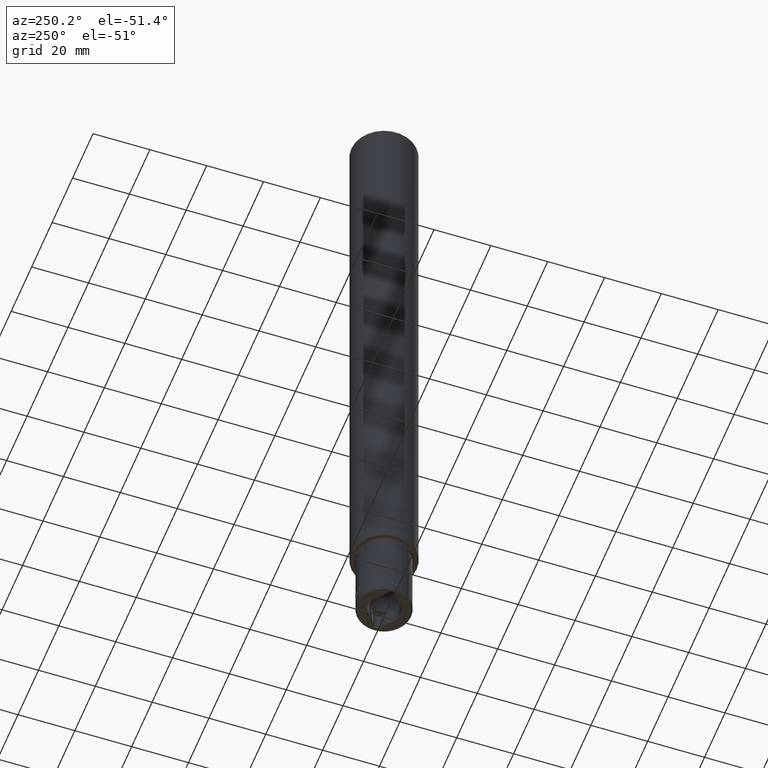
[diagram: clean part render]
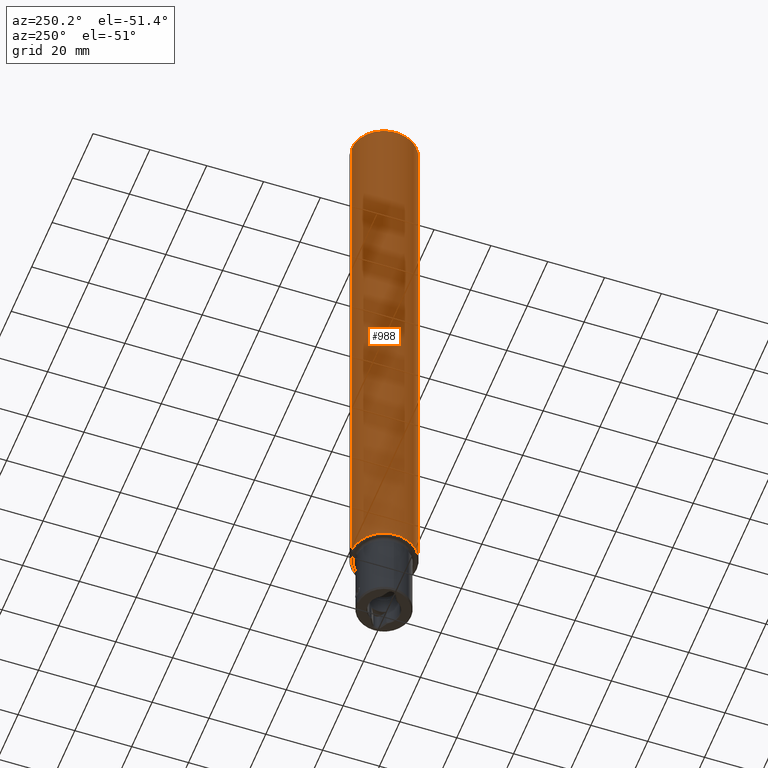
[diagram: same view with one face highlighted and labeled with its STEP entity id]
A machine part, auxiliary view. The second image highlights one B-rep face of the part: STEP entity #988.
In plain terms, the highlighted cylindrical surface (edge-blend (fillet) strip) has radius 11.5 mm, axis along (-0, 0, -1).
Its self-contained STEP definition (entity closure, byte-faithful):
#428=EDGE_CURVE('NONE',#794,#892,#1138,.T.);
#524=VERTEX_POINT('NONE',#1245);
#584=VERTEX_POINT('NONE',#1312);
#664=EDGE_CURVE('NONE',#524,#794,#1395,.F.);
#794=VERTEX_POINT('NONE',#1543);
#810=EDGE_CURVE('NONE',#584,#892,#1561,.F.);
#892=VERTEX_POINT('NONE',#1652);
#928=EDGE_CURVE('NONE',#524,#584,#1692,.T.);
#988=ADVANCED_FACE('NONE',(#1758),#1759,.T.);
#1138=LINE('',#1923,#1924);
#1245=CARTESIAN_POINT('',(2.81664112591521E-015,-11.5000000000001,240.0));
#1312=CARTESIAN_POINT('',(2.81664112591519E-015,-11.5,26.5));
#1395=CIRCLE('',#2367,11.5);
#1543=CARTESIAN_POINT('',(-1.40834381901945E-015,11.5,240.0));
#1561=CIRCLE('',#2759,11.5);
#1652=CARTESIAN_POINT('',(-1.40834381901946E-015,11.5,26.5));
#1692=LINE('',#2995,#2996);
#1758=FACE_OUTER_BOUND('',#3175,.T.);
#1759=CYLINDRICAL_SURFACE('',#3176,11.5);
#1923=CARTESIAN_POINT('',(-1.40834381901946E-015,11.5,2.64829834046847E-015));
#1924=VECTOR('',#3356,1000.0);
#2367=AXIS2_PLACEMENT_3D('',#3618,#3619,#3620);
#2759=AXIS2_PLACEMENT_3D('',#3860,#3861,#3862);
#2995=CARTESIAN_POINT('',(2.81664112591519E-015,-11.5,-2.64829834046847E-015));
#2996=VECTOR('',#4015,1000.0);
#3175=EDGE_LOOP('',(#4085,#4086,#4087,#4088));
#3176=AXIS2_PLACEMENT_3D('',#4089,#4090,#4091);
#3356=DIRECTION('',(-2.82020007464518E-032,2.30286812214649E-016,-1.0));
#3618=CARTESIAN_POINT('',(6.76848017914843E-030,-5.52688349315158E-014,240.0));
#3619=DIRECTION('',(2.82020007464518E-032,-2.30286812214649E-016,1.0));
#3620=DIRECTION('',(-1.22464679914735E-016,1.0,2.30286812214649E-016));
#3860=CARTESIAN_POINT('',(7.47353019780972E-031,-6.10260052368821E-015,26.5));
#3861=DIRECTION('',(2.82020007464518E-032,-2.30286812214649E-016,1.0));
#3862=DIRECTION('',(-1.22464679914735E-016,1.0,2.30286812214649E-016));
#4015=DIRECTION('',(-2.82020007464518E-032,2.30286812214649E-016,-1.0));
#4085=ORIENTED_EDGE('',*,*,#928,.F.);
#4086=ORIENTED_EDGE('',*,*,#664,.T.);
#4087=ORIENTED_EDGE('',*,*,#428,.T.);
#4088=ORIENTED_EDGE('',*,*,#810,.F.);
#4089=CARTESIAN_POINT('',(0.0,0.0,0.0));
#4090=DIRECTION('',(-2.82020007464518E-032,2.30286812214649E-016,-1.0));
#4091=DIRECTION('',(-1.22464679914735E-016,1.0,2.30286812214649E-016));